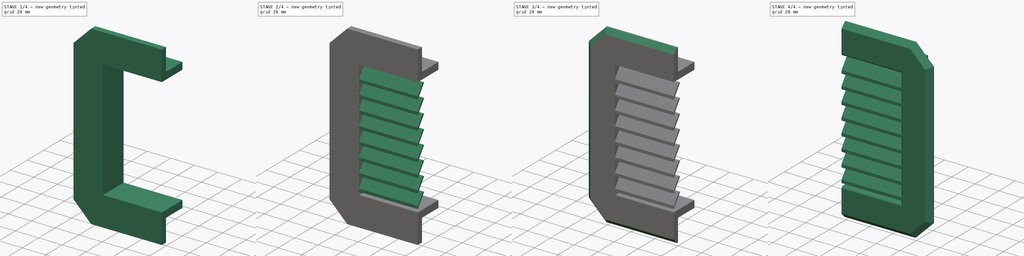
[diagram: build sequence overview — one tinted view per stage of 4, left to right]
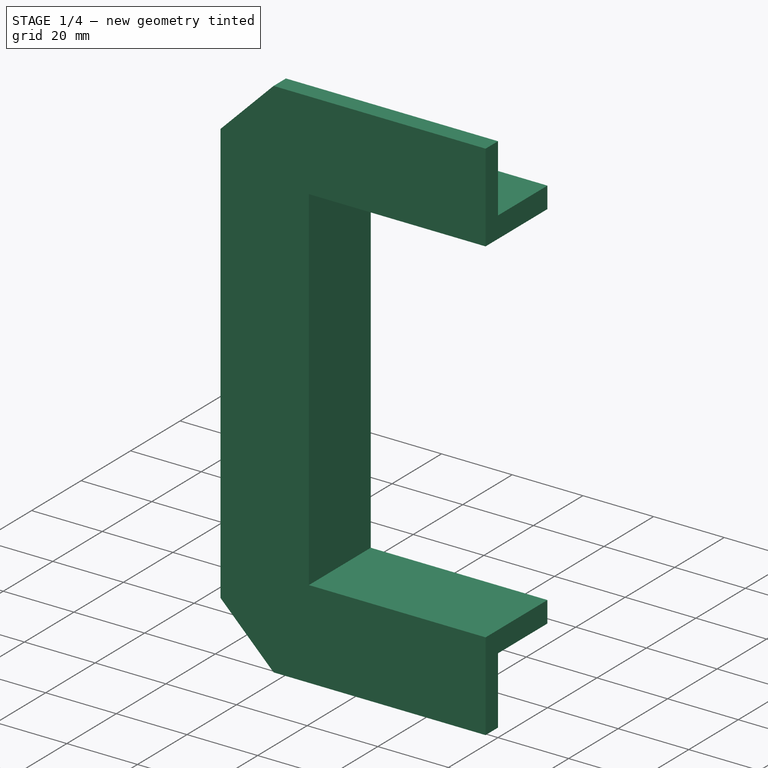
[diagram: stage 1 of 4 — iso view after this stage's code; geometry added in this stage tinted green]
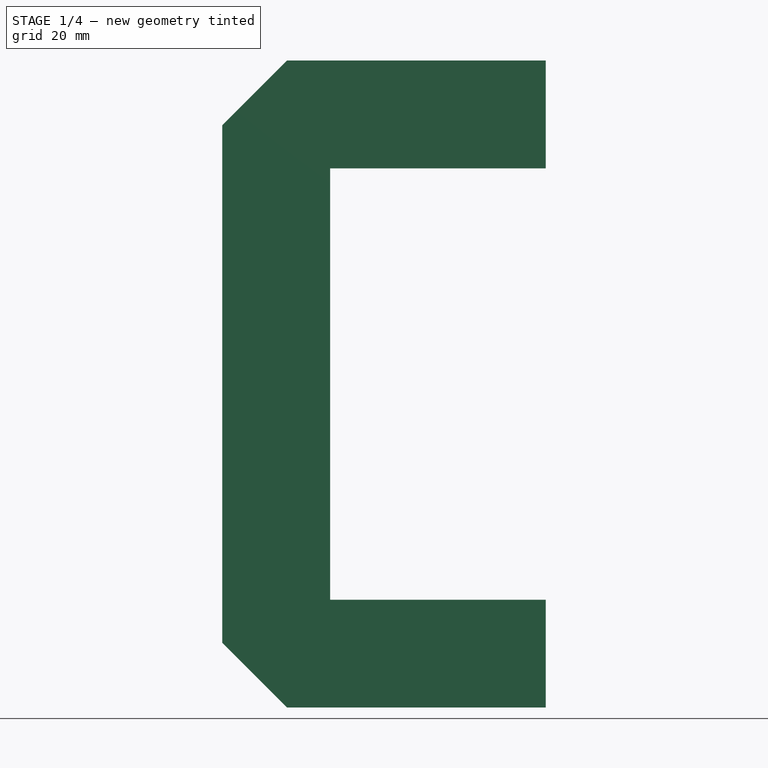
[diagram: stage 1 of 4 — front view after this stage's code; geometry added in this stage tinted green]
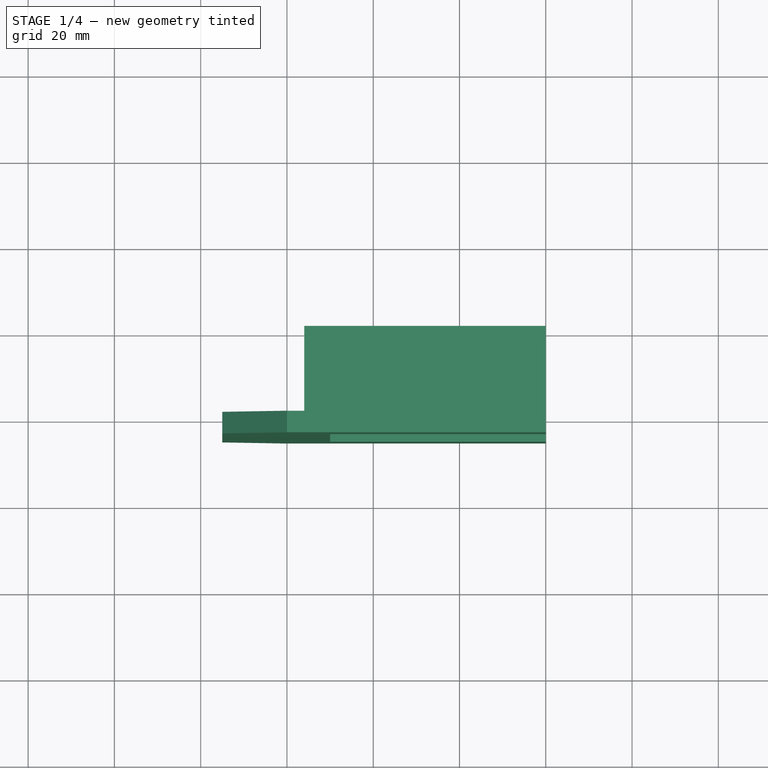
[diagram: stage 1 of 4 — top view after this stage's code; geometry added in this stage tinted green]
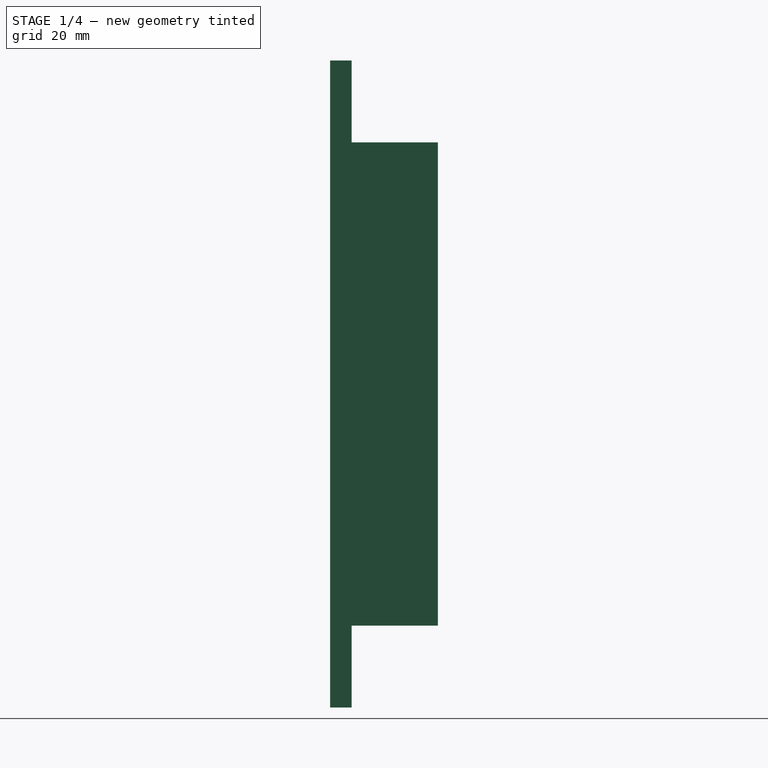
[diagram: stage 1 of 4 — right view after this stage's code; geometry added in this stage tinted green]
FCSTD DOCUMENT  (FreeCAD 0.21R33771 (Git))
Label: 2014-07-28_Lüftungsgitter-Aussen_V1
License: All rights reserved
LicenseURL: http://en.wikipedia.org/wiki/All_rights_reserved
objects: Sketcher::SketchObject×6, PartDesign::Pad×3, PartDesign::Chamfer×2, PartDesign::LinearPattern×1, PartDesign::Hole×1, PartDesign::Fillet×1, PartDesign::Body×1, Part::Mirroring×1
note: 23 computed .brp shape members not serialized (recipe doc carries the construction recipe); baked Part::Feature solids carry a one-line shape summary decoded from their .brp

FEATURE [Sketcher::SketchObject] Sketch
  FullyConstrained = true
  MapMode = 5
  Placement = pos=(0,0,0) rot=(1,0,0;1.5708rad)
  Support = -> [XZ_Plane]
  sketch-geometry (10):
    g0: LineSegment StartX=-50 StartY=-50 StartZ=0 EndX=-50 EndY=50 EndZ=0
    g1: LineSegment StartX=-50 StartY=50 StartZ=0 EndX=0 EndY=50 EndZ=0
    g2: LineSegment StartX=0 StartY=75 StartZ=0 EndX=-60 EndY=75 EndZ=0
    g3: LineSegment StartX=-75 StartY=60 StartZ=0 EndX=-75 EndY=-60 EndZ=0
    g4: LineSegment StartX=0 StartY=75 StartZ=0 EndX=0 EndY=50 EndZ=0
    g5: LineSegment StartX=-75 StartY=60 StartZ=0 EndX=-60 EndY=75 EndZ=0
    g6: LineSegment StartX=-50 StartY=-50 StartZ=0 EndX=0 EndY=-50 EndZ=0
    g7: LineSegment StartX=0 StartY=-50 StartZ=0 EndX=0 EndY=-75 EndZ=0
    g8: LineSegment StartX=0 StartY=-75 StartZ=0 EndX=-60 EndY=-75 EndZ=0
    g9: LineSegment StartX=-60 StartY=-75 StartZ=0 EndX=-75 EndY=-60 EndZ=0
  constraints (28):
    c: Coincident(g0,g1)
    c: Horizontal(g1)
    c: PointOnObject(g2,g-2)
    c: Horizontal(g2)
    c: Coincident(g4,g2)
    c: Coincident(g4,g1)
    c: Vertical(g1,g-1)
    c: Distance(g1) = 50
    c: Distance(g0) = 100
    c: Coincident(g3,g5)
    c: Coincident(g2,g5)
    c: Distance(g4) = 25
    c: Angle(g3,g5) = 2.35619
    c: Symmetric(g0,g0,g-1)
    c: Coincident(g0,g6)
    c: PointOnObject(g6,g-2)
    c: Horizontal(g6)
    c: Coincident(g6,g7)
    c: PointOnObject(g7,g-2)
    c: Coincident(g7,g8)
    c: Horizontal(g8)
    c: Coincident(g8,g9)
    c: Coincident(g9,g3)
    c: Distance(g7) = 25
    c: Symmetric(g3,g3,g-1)
    c: DistanceX(g-2,g3) = -75
    c: Angle(g9,g3) = 2.35619
    c: Distance(g3) = 120
FEATURE [PartDesign::Pad] Pad
  Direction = (0,-1,-2e-16)
  Length = 5
  Length2 = 10
  Placement = pos=(0,0,0) rot=(1,0,0;1.5708rad)
  Profile = -> Sketch
  ReferenceAxis = -> Sketch [N_Axis]
  Type = 0
FEATURE [Sketcher::SketchObject] Sketch001
  FullyConstrained = true
  MapMode = 5
  Placement = pos=(0,0,0) rot=(1,0,0;1.5708rad)
  Support = -> [XZ_Plane]
  sketch-geometry (10):
    g0: LineSegment StartX=0 StartY=56 StartZ=0 EndX=-56 EndY=56 EndZ=0
    g1: LineSegment StartX=-56 StartY=56 StartZ=0 EndX=-56 EndY=0 EndZ=0
    g2: LineSegment StartX=-50 StartY=0 StartZ=0 EndX=-50 EndY=50 EndZ=0
    g3: LineSegment StartX=-50 StartY=50 StartZ=0 EndX=0 EndY=50 EndZ=0
    g4: LineSegment StartX=0 StartY=50 StartZ=0 EndX=0 EndY=56 EndZ=0
    g5: LineSegment StartX=-50 StartY=0 StartZ=0 EndX=-50 EndY=-50 EndZ=0
    g6: LineSegment StartX=-50 StartY=-50 StartZ=0 EndX=0 EndY=-50 EndZ=0
    g7: LineSegment StartX=0 StartY=-50 StartZ=0 EndX=0 EndY=-56 EndZ=0
    g8: LineSegment StartX=0 StartY=-56 StartZ=0 EndX=-56 EndY=-56 EndZ=0
    g9: LineSegment StartX=-56 StartY=-56 StartZ=0 EndX=-56 EndY=0 EndZ=0
  constraints (28):
    c: PointOnObject(g0,g-2)
    c: Horizontal(g0)
    c: Coincident(g0,g1)
    c: PointOnObject(g1,g-1)
    c: Vertical(g1)
    c: Vertical(g2)
    c: Coincident(g2,g3)
    c: PointOnObject(g3,g-2)
    c: Horizontal(g3)
    c: Coincident(g3,g4)
    c: Coincident(g4,g0)
    c: Distance(g3) = 50
    c: Distance(g0) = 56
    c: Distance(g1) = 56
    c: Coincident(g5,g6)
    c: PointOnObject(g6,g-2)
    c: Horizontal(g6)
    c: Coincident(g6,g7)
    c: Coincident(g7,g8)
    c: Horizontal(g8)
    c: Coincident(g8,g9)
    c: Vertical(g9)
    c: Coincident(g9,g1)
    c: Distance(g5,g3) = 100
    c: Symmetric(g2,g5,g-1)
    c: Symmetric(g0,g7,g-1)
    c: Coincident(g5,g2)
    c: PointOnObject(g2,g-1)
FEATURE [PartDesign::Pad] Pad001
  BaseFeature = -> Pad
  Direction = (0,-1,-2e-16)
  Length = 20
  Length2 = 10
  Placement = pos=(0,0,0) rot=(1,0,0;1.5708rad)
  Profile = -> Sketch001
  ReferenceAxis = -> Sketch001 [N_Axis]
  Reversed = true
  Type = 0
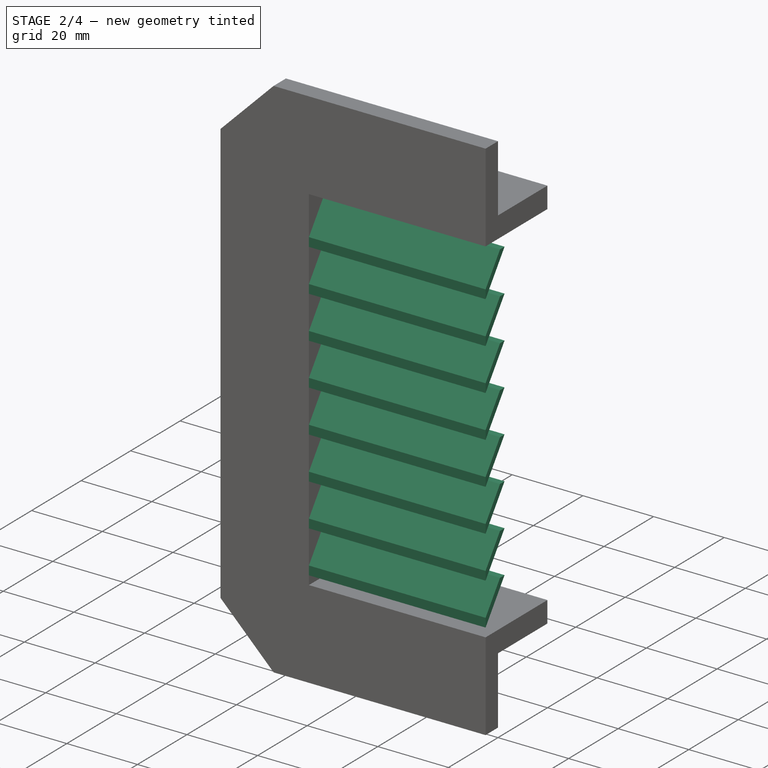
[diagram: stage 2 of 4 — iso view after this stage's code; geometry added in this stage tinted green]
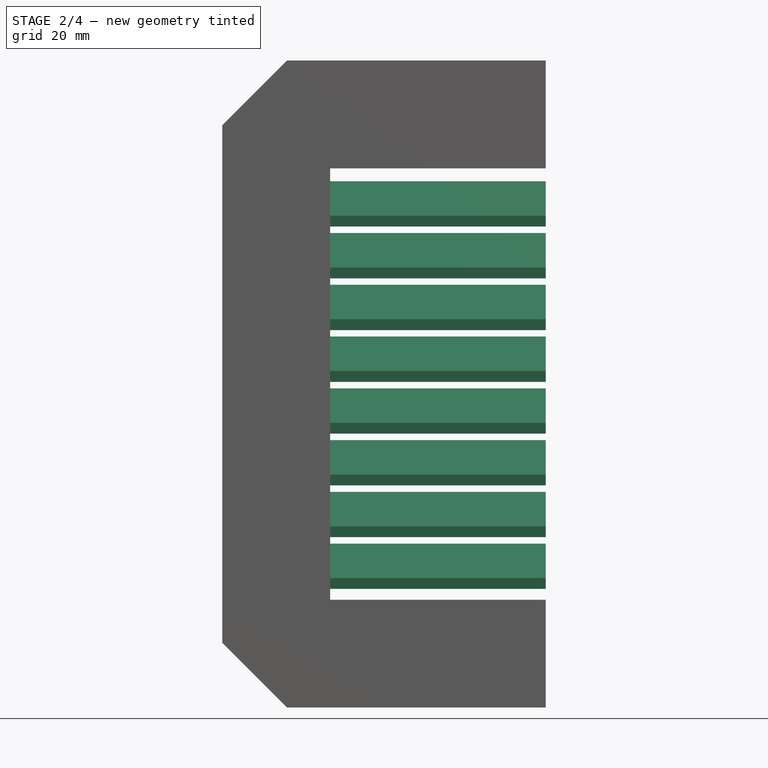
[diagram: stage 2 of 4 — front view after this stage's code; geometry added in this stage tinted green]
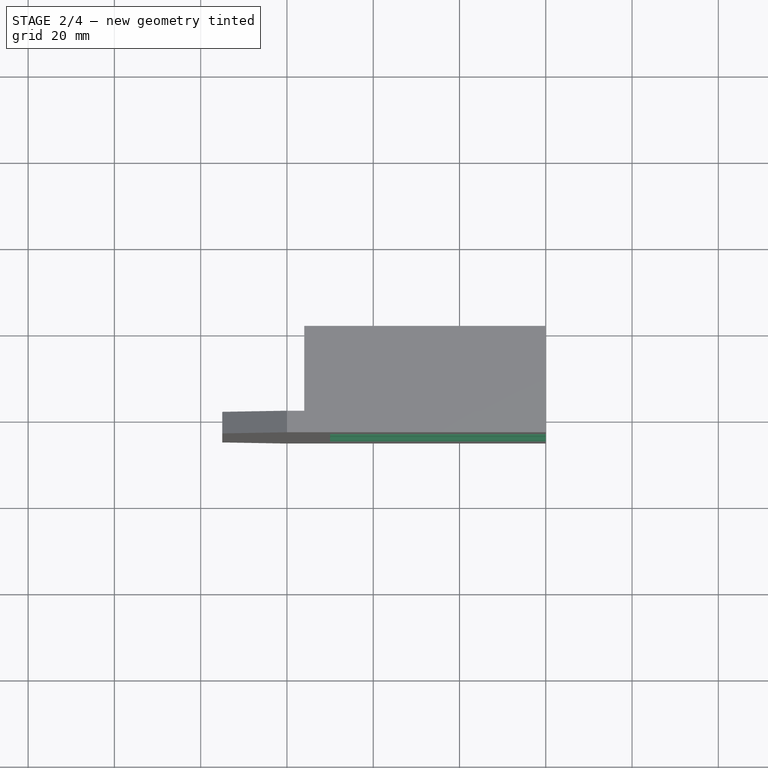
[diagram: stage 2 of 4 — top view after this stage's code; geometry added in this stage tinted green]
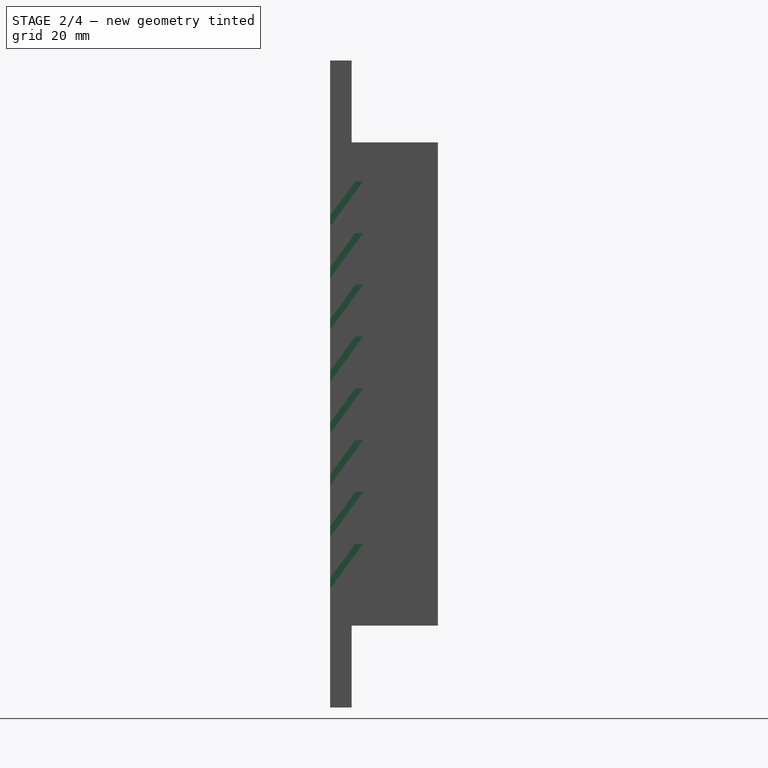
[diagram: stage 2 of 4 — right view after this stage's code; geometry added in this stage tinted green]
FEATURE [Sketcher::SketchObject] Sketch002
  ExternalGeometry = -> [Pad001]
  FullyConstrained = true
  MapMode = 5
  Placement = pos=(-50,0,0) rot=(0.707107,0,0.707107;3.14159rad)
  Support = -> [Pad001]
  sketch-geometry (4):
    g0: LineSegment StartX=39 StartY=5 StartZ=0 EndX=47 EndY=-0.839889 EndZ=0
    g1: LineSegment StartX=47 StartY=-2.66485 StartZ=0 EndX=47 EndY=-0.839889 EndZ=0
    g2: LineSegment StartX=47 StartY=-2.66485 StartZ=0 EndX=36.5 EndY=5 EndZ=0
    g3: LineSegment StartX=36.5 StartY=5 StartZ=0 EndX=39 EndY=5 EndZ=0
  constraints (12):
    c: PointOnObject(g0,g-3)
    c: Coincident(g1,g0)
    c: Coincident(g2,g1)
    c: PointOnObject(g2,g-3)
    c: Coincident(g3,g2)
    c: Coincident(g3,g0)
    c: Parallel(g2,g0)
    c: Vertical(g1)
    c: Distance(g3) = 2.5
    c: Distance(g2) = 13
    c: Distance(g0,g-3) = 11
    c: Distance(g0,g-4) = 3
FEATURE [PartDesign::Pad] Pad002
  BaseFeature = -> Pad001
  Direction = (1,0,-2e-16)
  Length = 10
  Length2 = 10
  Placement = pos=(0,0,0) rot=(1,0,0;1.5708rad)
  Profile = -> Sketch002
  ReferenceAxis = -> Sketch002 [N_Axis]
  Type = 3
  UpToFace = -> Pad001 [Face19]
FEATURE [PartDesign::LinearPattern] LinearPattern
  BaseFeature = -> Pad002
  Direction = -> Sketch002 [H_Axis]
  Length = 84
  Occurrences = 8
  Originals = -> [Pad002]
  Placement = pos=(0,0,0) rot=(1,0,0;1.5708rad)
  Reversed = true
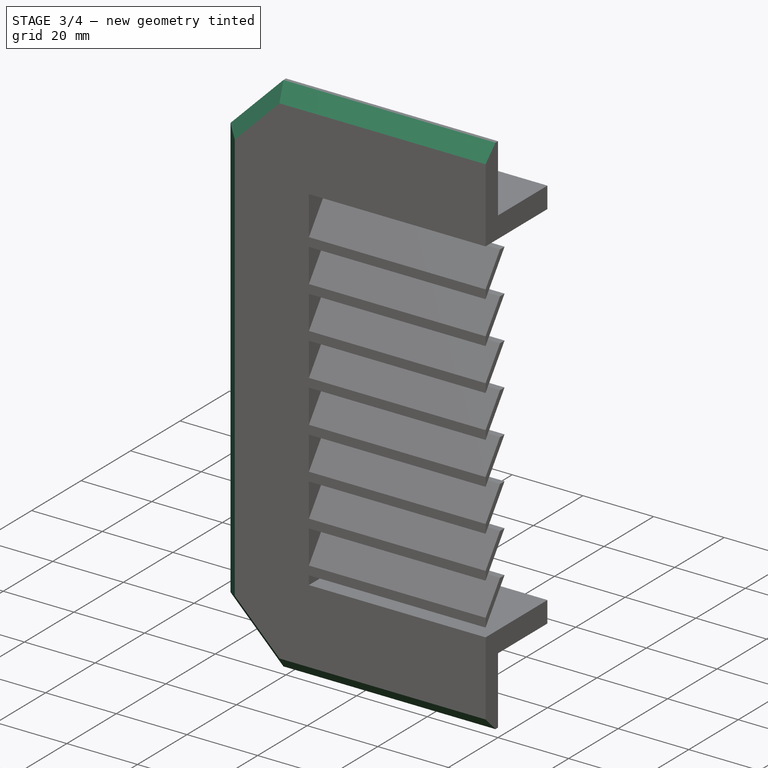
[diagram: stage 3 of 4 — iso view after this stage's code; geometry added in this stage tinted green]
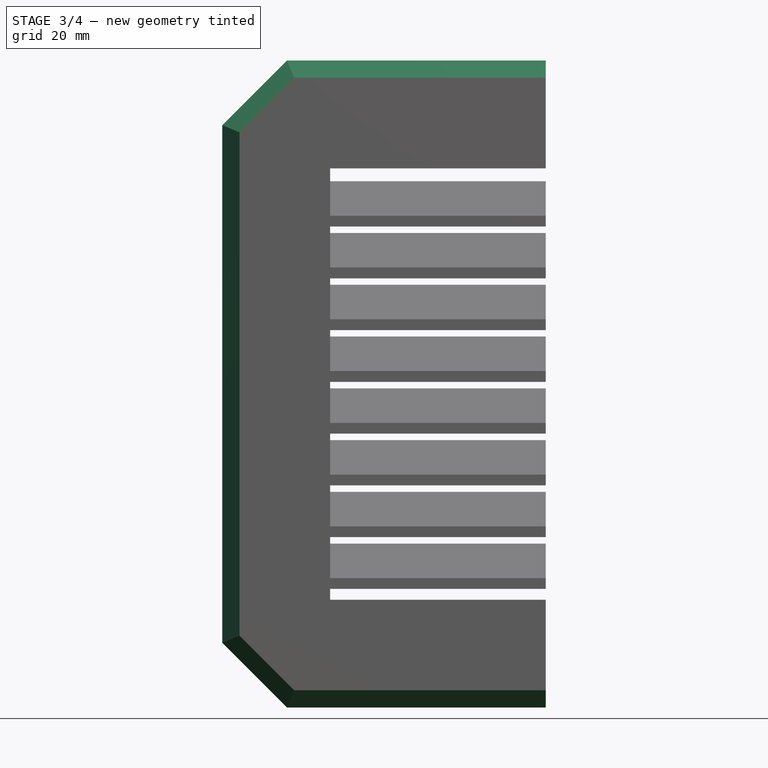
[diagram: stage 3 of 4 — front view after this stage's code; geometry added in this stage tinted green]
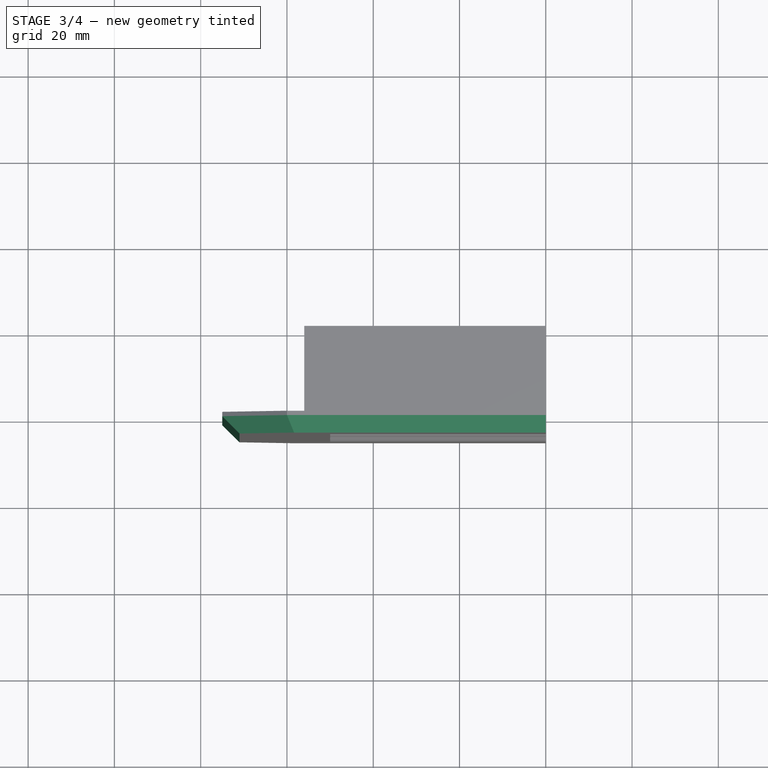
[diagram: stage 3 of 4 — top view after this stage's code; geometry added in this stage tinted green]
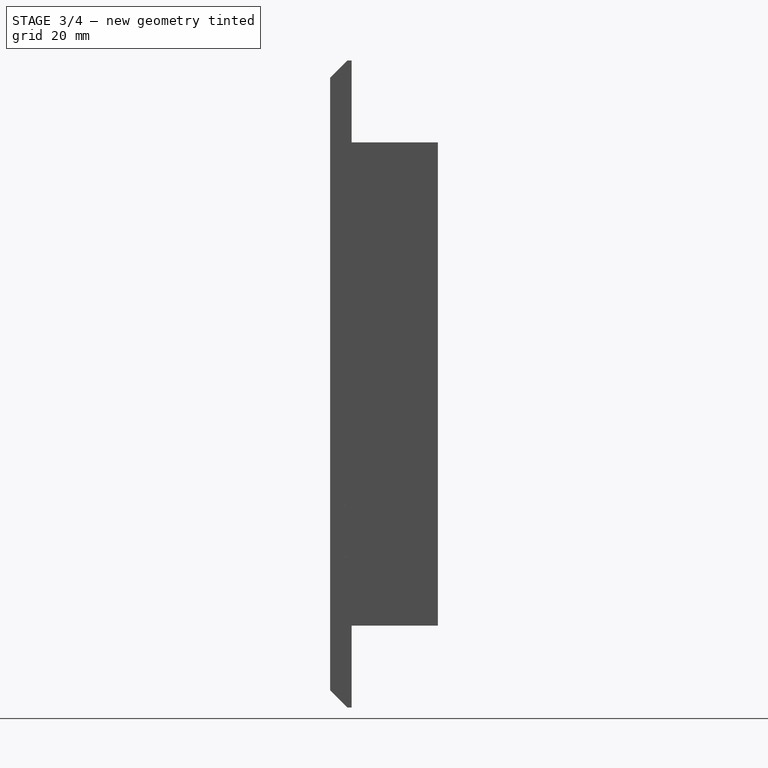
[diagram: stage 3 of 4 — right view after this stage's code; geometry added in this stage tinted green]
FEATURE [Sketcher::SketchObject] Sketch003
  ExternalGeometry = -> [LinearPattern]
  FullyConstrained = true
  MapMode = 5
  Placement = pos=(0,20,4.4e-15) rot=(-1,0,0;1.5708rad)
  Support = -> [LinearPattern]
  sketch-geometry (3):
    g0: Circle CenterX=-25 CenterY=53 CenterZ=0 NormalX=0 NormalY=0 NormalZ=1 AngleXU=0 Radius=1.5
    g1: Circle CenterX=-53 CenterY=0 CenterZ=0 NormalX=0 NormalY=0 NormalZ=1 AngleXU=0 Radius=1.5
    g2: Circle CenterX=-25 CenterY=-53 CenterZ=0 NormalX=0 NormalY=0 NormalZ=1 AngleXU=0 Radius=1.5
  constraints (9):
    c: PointOnObject(g1,g-1)
    c: Distance(g0,g-5) = 3
    c: Distance(g1,g-3) = 3
    c: Distance(g2,g-4) = 3
    c: Distance(g0,g-7) = 25
    c: Distance(g2,g-6) = 25
    c: Diameter(g2) = 3
    c: Equal(g2,g1)
    c: Equal(g1,g0)
FEATURE [PartDesign::Hole] Hole
  BaseFeature = -> LinearPattern
  CustomThreadClearance = 0
  Depth = 20
  DepthType = 0
  Diameter = 3.2
  DrillForDepth = false
  DrillPoint = 1
  DrillPointAngle = 118
  HoleCutCountersinkAngle = 90
  HoleCutCustomValues = false
  HoleCutDepth = 0
  HoleCutDiameter = 6.1
  HoleCutType = 0
  ModelThread = false
  Placement = pos=(0,0,0) rot=(1,0,0;1.5708rad)
  Profile = -> Sketch003
  Tapered = false
  TaperedAngle = 90
  ThreadClass = 0
  ThreadDepth = 20
  ThreadDepthType = 0
  ThreadDirection = 0
  ThreadFit = 0
  ThreadSize = 0
  ThreadType = 0
  Threaded = false
  UseCustomThreadClearance = false
FEATURE [PartDesign::Chamfer] Chamfer
  Angle = 45
  Base = -> Hole [Edge45,Edge46,Edge47,Edge48,Edge49]
  BaseFeature = -> Hole
  ChamferType = 0
  FlipDirection = false
  Placement = pos=(0,0,0) rot=(1,0,0;1.5708rad)
  Size = 4
  Size2 = 1
  SupportTransform = false
  UseAllEdges = false
FEATURE [PartDesign::Chamfer] Chamfer001
  Angle = 45
  Base = -> Chamfer [Edge199,Edge197,Edge198]
  BaseFeature = -> Chamfer
  ChamferType = 0
  FlipDirection = false
  Placement = pos=(0,0,0) rot=(1,0,0;1.5708rad)
  Size = 1
  Size2 = 1
  SupportTransform = false
  UseAllEdges = false
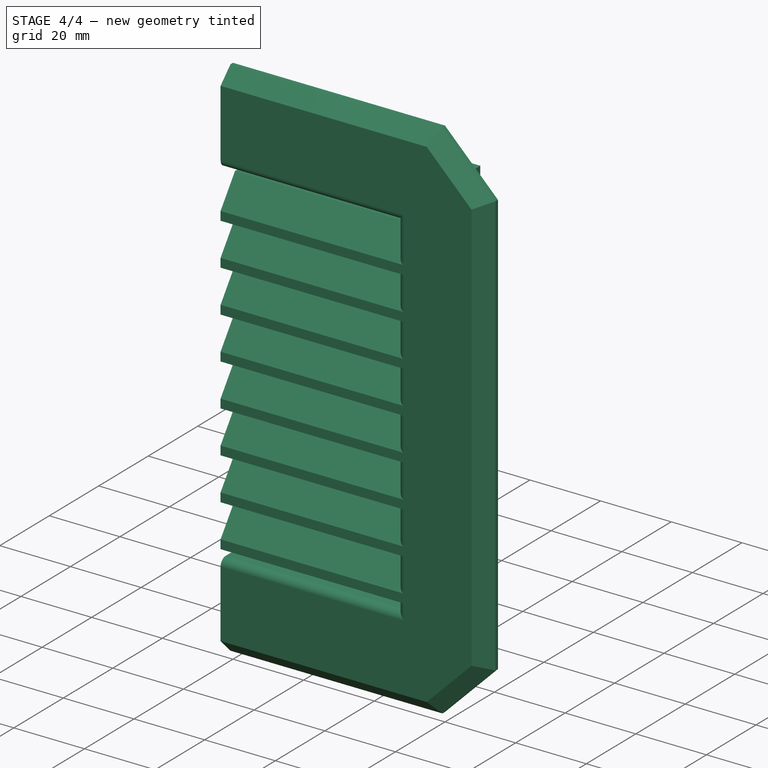
[diagram: stage 4 of 4 — iso view after this stage's code; geometry added in this stage tinted green]
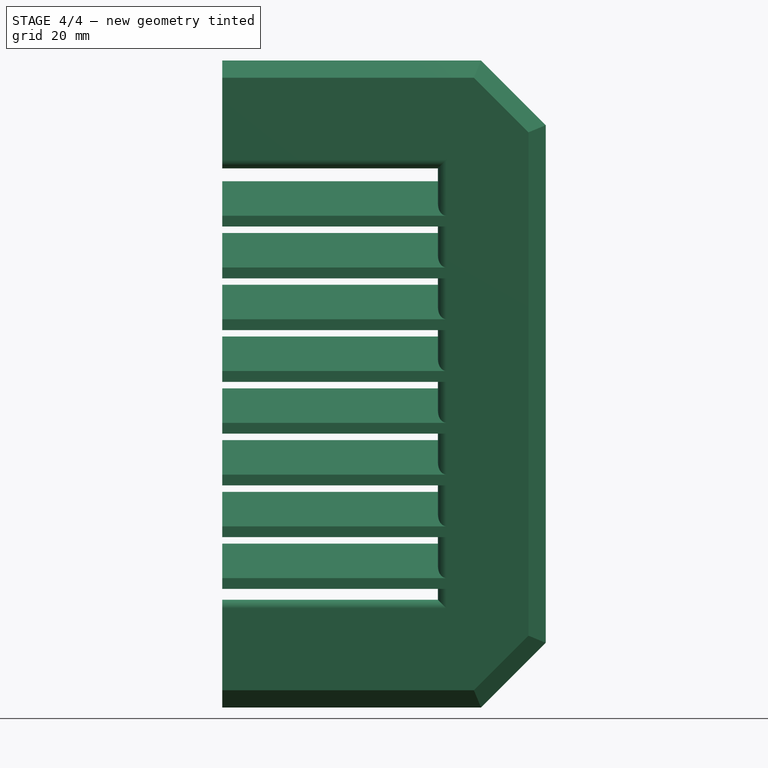
[diagram: stage 4 of 4 — front view after this stage's code; geometry added in this stage tinted green]
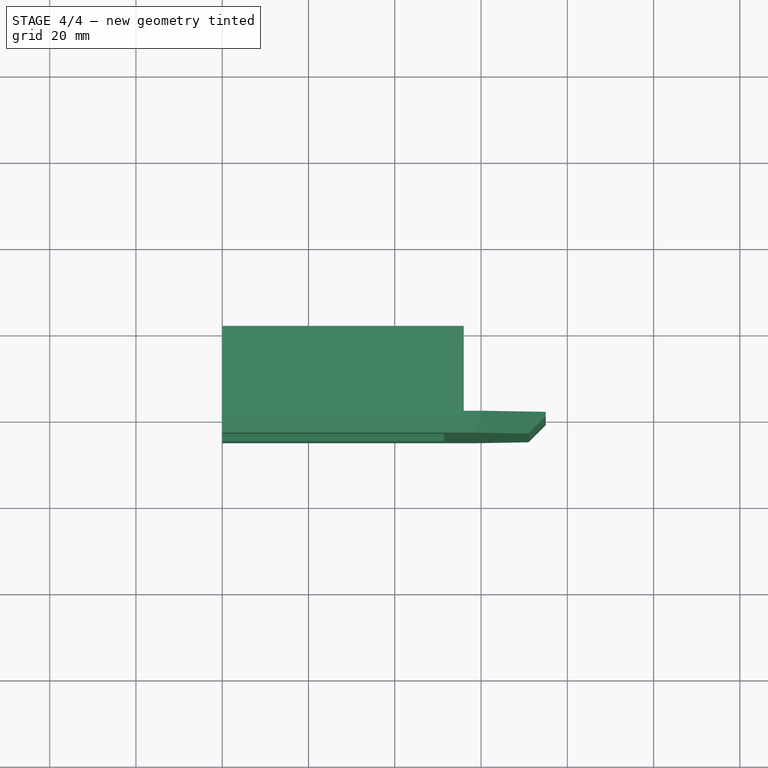
[diagram: stage 4 of 4 — top view after this stage's code; geometry added in this stage tinted green]
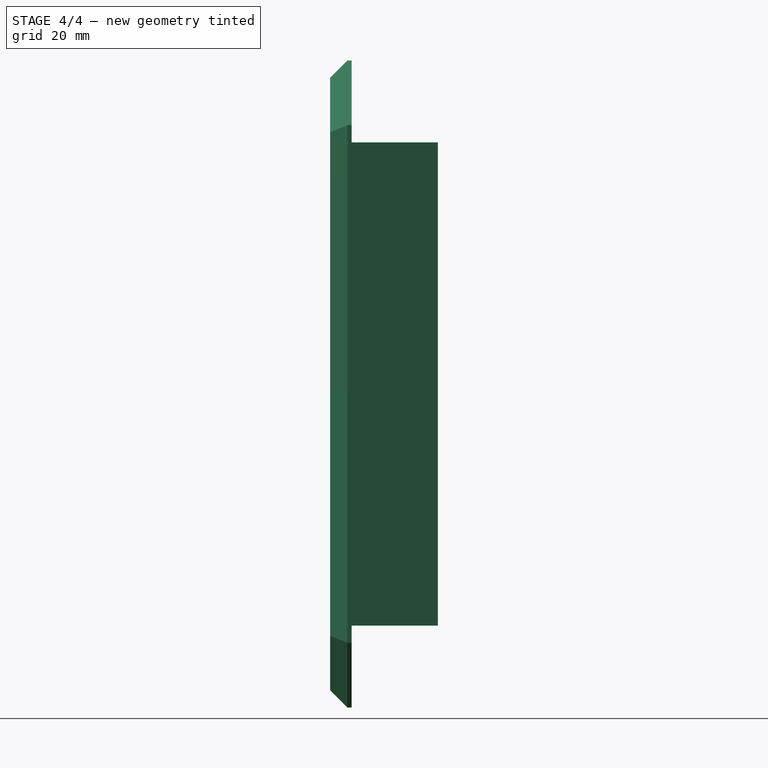
[diagram: stage 4 of 4 — right view after this stage's code; geometry added in this stage tinted green]
FEATURE [PartDesign::Fillet] Fillet
  Base = -> Chamfer001 [Edge158,Edge116,Edge106,Edge96,Edge86,Edge75,Edge125,Edge135,Edge145,Edge155,Edge160]
  BaseFeature = -> Chamfer001
  Placement = pos=(0,0,0) rot=(1,0,0;1.5708rad)
  Radius = 2
  SupportTransform = false
  UseAllEdges = false
FEATURE [Sketcher::SketchObject] Sketch004
  ExternalGeometry = -> [Fillet]
  FullyConstrained = true
  MapMode = 5
  Placement = pos=(0,0,0) rot=(-1,0,0;1.5708rad)
  Support = -> [Fillet]
  sketch-geometry (9):
    g0: LineSegment StartX=0 StartY=65 StartZ=0 EndX=-54.6152 EndY=65 EndZ=0
    g1: LineSegment StartX=-56.7365 StartY=64.1213 StartZ=0 EndX=-64.1213 EndY=56.7365 EndZ=0
    g2: LineSegment StartX=-65 StartY=54.6152 StartZ=0 EndX=-65 EndY=-54.6152 EndZ=0
    g3: LineSegment StartX=-64.1213 StartY=-56.7365 StartZ=0 EndX=-56.7365 EndY=-64.1213 EndZ=0
    g4: LineSegment StartX=-54.6152 StartY=-65 StartZ=0 EndX=0 EndY=-65 EndZ=0
    g5: ArcOfCircle CenterX=-54.6152 CenterY=62 CenterZ=0 NormalX=0 NormalY=0 NormalZ=1 AngleXU=0 Radius=3 StartAngle=1.5708 EndAngle=2.35619
    g6: ArcOfCircle CenterX=-62 CenterY=54.6152 CenterZ=0 NormalX=0 NormalY=0 NormalZ=1 AngleXU=0 Radius=3 StartAngle=2.35619 EndAngle=3.14159
    g7: ArcOfCircle CenterX=-62 CenterY=-54.6152 CenterZ=0 NormalX=0 NormalY=0 NormalZ=1 AngleXU=0 Radius=3 StartAngle=3.14159 EndAngle=3.92699
    g8: ArcOfCircle CenterX=-54.6152 CenterY=-62 CenterZ=0 NormalX=0 NormalY=0 NormalZ=1 AngleXU=0 Radius=3 StartAngle=3.92699 EndAngle=4.71239
  constraints (25):
    c: PointOnObject(g0,g-2)
    c: Horizontal(g0)
    c: Vertical(g2)
    c: PointOnObject(g4,g-2)
    c: Horizontal(g4)
    c: Distance(g4,g-7) = 10
    c: Distance(g-5) = 120
    c: Distance(g0,g-3) = 10
    c: Tangent(g0,g5) = -1.5708
    c: Tangent(g1,g5) = -1.5708
    c: Tangent(g1,g6) = -1.5708
    c: Tangent(g2,g6) = -1.5708
    c: Tangent(g2,g7) = -1.5708
    c: Tangent(g3,g7) = -1.5708
    c: Tangent(g3,g8) = -1.5708
    c: Tangent(g4,g8) = -1.5708
    c: Diameter(g8) = 6
    c: Equal(g8,g7)
    c: Equal(g7,g6)
    c: Equal(g6,g5)
    c: Distance(g1,g-4) = 10
    c: Distance(g3,g-6) = 10
    c: Distance(g3,g-6) = 10
    c: Distance(g1,g-4) = 10
    c: Distance(g2,g-5) = 10
FEATURE [Sketcher::SketchObject] Sketch005
  ExternalGeometry = -> [Sketch004]
  FullyConstrained = true
  MapMode = 5
  Placement = pos=(0,0,0) rot=(0.707107,0,0.707107;3.14159rad)
  Support = -> [Fillet]
  sketch-geometry (1):
    g0: Circle CenterX=65 CenterY=0 CenterZ=0 NormalX=0 NormalY=0 NormalZ=1 AngleXU=0 Radius=3.1
  constraints (2):
    c: Coincident(g0,g-3)
    c: Diameter(g0) = 6.2
FEATURE [PartDesign::Body] Body  label="Körper"
  Group = -> [Sketch,Pad,Sketch001,Pad001,Sketch002,Pad002,LinearPattern,Sketch003,Hole,Chamfer,Chamfer001,Fillet,Sketch004,Sketch005]
  Origin = -> Origin
  Tip = -> Fillet
FEATURE [Part::Mirroring] Part__Mirroring  label="Körper (Mirror #1)"
  Base = (0,0,0)
  Normal = (1,0,0)
  Source = -> Body
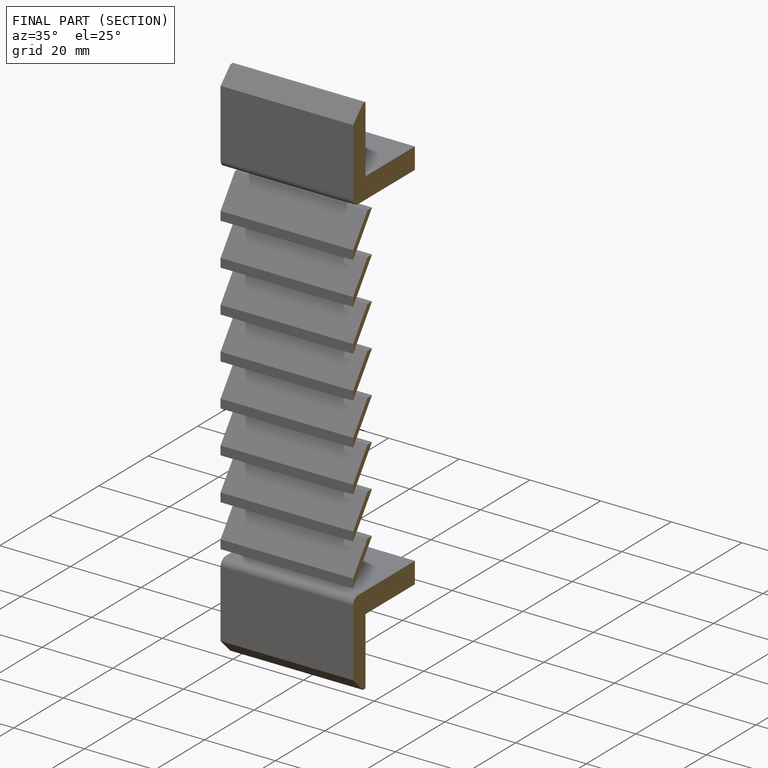
[diagram: finished part — half-section view (interior)]
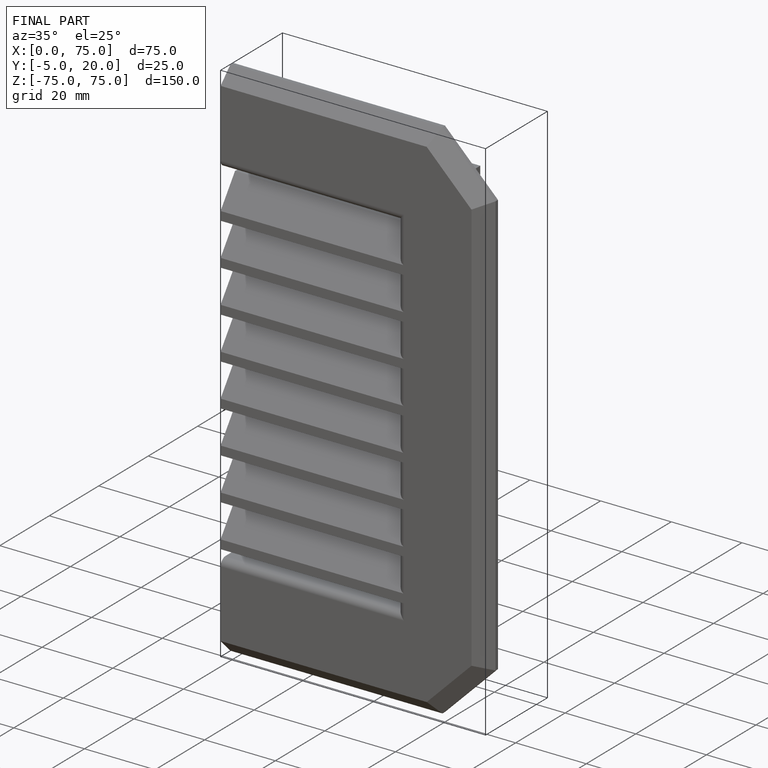
[diagram: finished part — iso view with bounding-box wireframe]
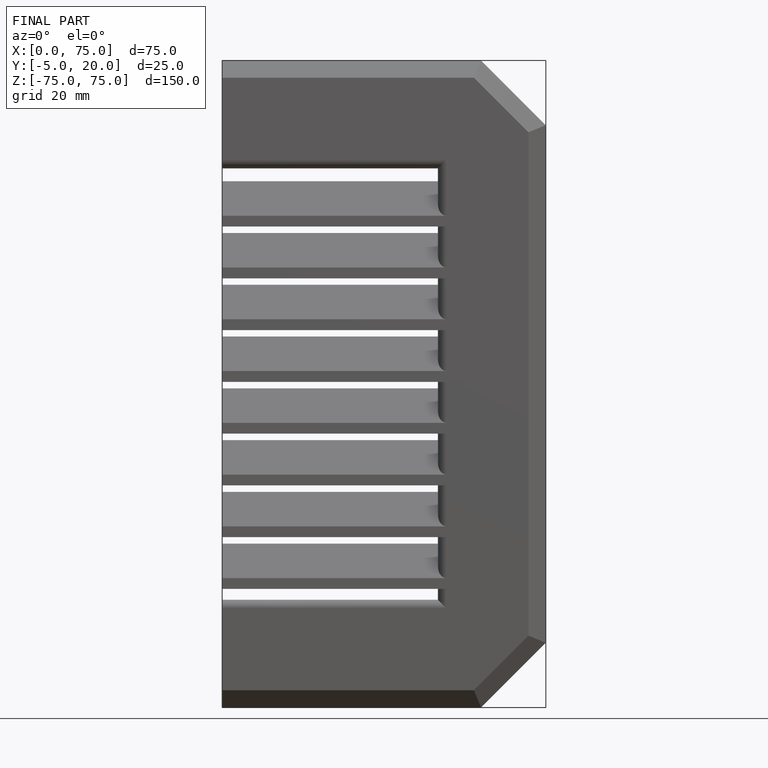
[diagram: finished part — front view with bounding-box wireframe]
